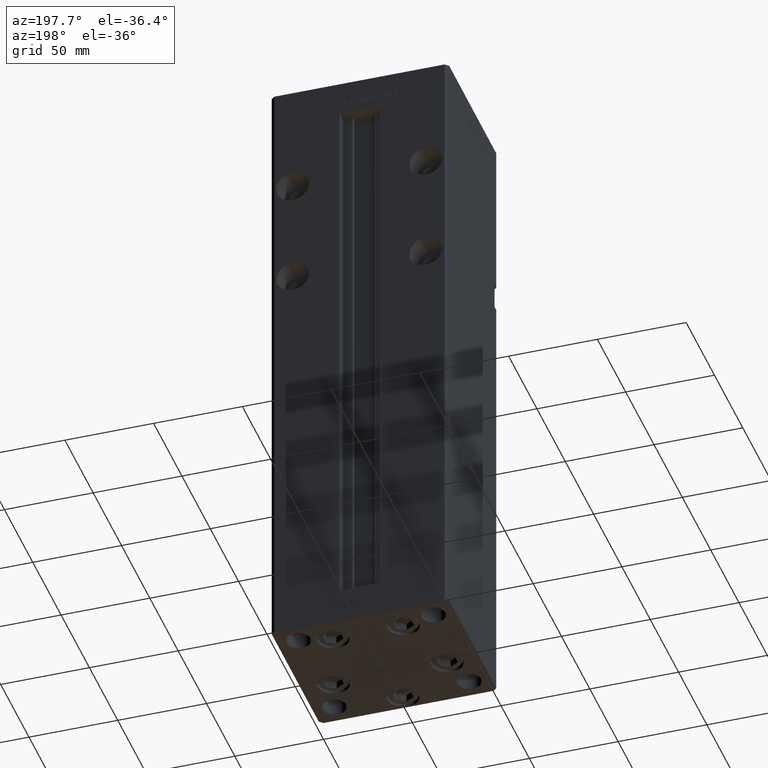
[diagram: clean part render]
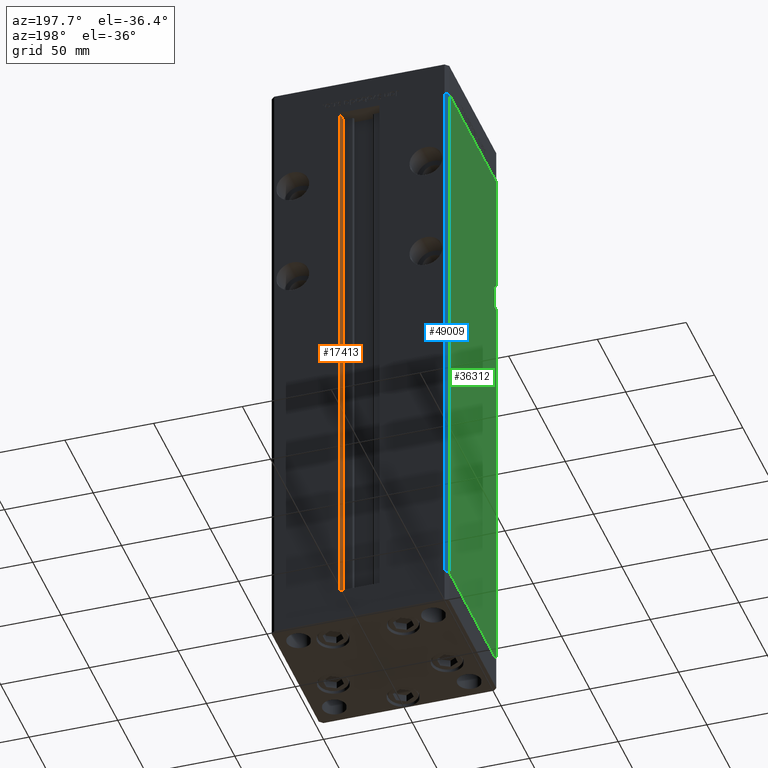
[diagram: same view with three faces highlighted in distinct colors, each labeled with its STEP entity id]
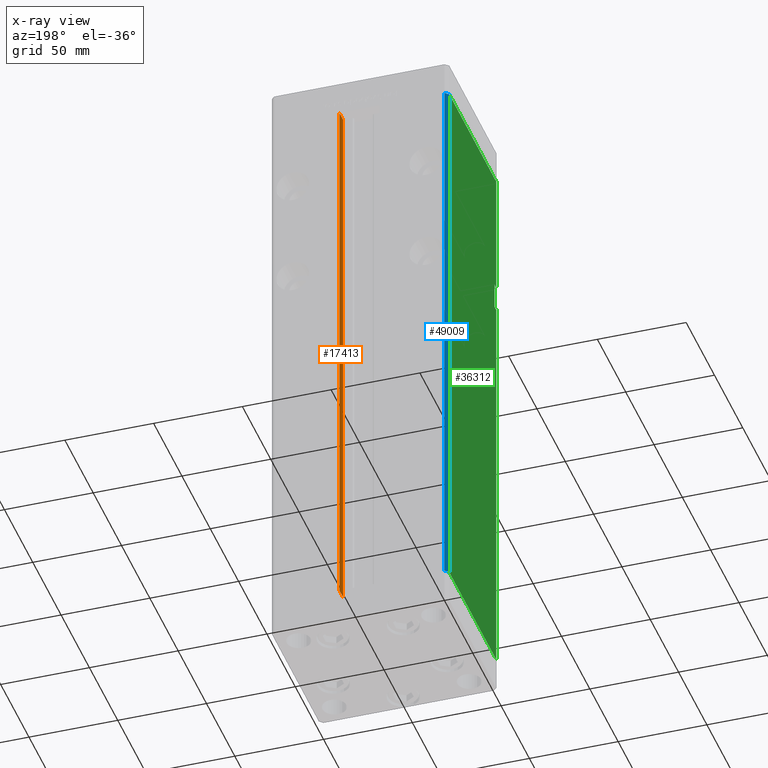
[diagram: x-ray of the same camera — body ghosted, the three highlighted faces saturated]
A machine part, auxiliary view with three faces highlighted in distinct colors.
The next image is the same camera in x-ray (body ghosted, the three faces saturated) — at least one of them is partly hidden behind the body in this view.
Their STEP definitions:

[orange] entity #17413 — the highlighted planar face has unit normal (1, 0, 0).
#274 = VECTOR ( 'NONE', #25777, 1000.000000000000000 ) ;
#2704 = EDGE_CURVE ( 'NONE', #45267, #31843, #22585, .T. ) ;
#2790 = ORIENTED_EDGE ( 'NONE', *, *, #43784, .F. ) ;
#2984 = CARTESIAN_POINT ( 'NONE',  ( 11.24999999999999645, 37.00000000000000000, 318.5000000000000000 ) ) ;
#3153 = EDGE_LOOP ( 'NONE', ( #2790, #44686, #5660, #45013 ) ) ;
#3252 = PLANE ( 'NONE',  #29648 ) ;
#5660 = ORIENTED_EDGE ( 'NONE', *, *, #7167, .T. ) ;
#6657 = CARTESIAN_POINT ( 'NONE',  ( 11.24999999999999645, 37.00000000000000000, 0.000000000000000000 ) ) ;
#7167 = EDGE_CURVE ( 'NONE', #35038, #31843, #38654, .T. ) ;
#10897 = EDGE_CURVE ( 'NONE', #35038, #51175, #35432, .T. ) ;
#11083 = LINE ( 'NONE', #51680, #22655 ) ;
#16158 = DIRECTION ( 'NONE',  ( 1.000000000000000000, -0.000000000000000000, 0.000000000000000000 ) ) ;
#17413 = ADVANCED_FACE ( 'NONE', ( #39553 ), #3252, .F. ) ;
#18794 = DIRECTION ( 'NONE',  ( -0.000000000000000000, -1.000000000000000000, 0.000000000000000000 ) ) ;
#22585 = LINE ( 'NONE', #38970, #39646 ) ;
#22655 = VECTOR ( 'NONE', #47114, 1000.000000000000000 ) ;
#25777 = DIRECTION ( 'NONE',  ( -0.000000000000000000, -0.000000000000000000, 1.000000000000000000 ) ) ;
#26634 = CARTESIAN_POINT ( 'NONE',  ( 11.24999999999999645, 37.00000000000000000, 0.000000000000000000 ) ) ;
#27470 = DIRECTION ( 'NONE',  ( 0.000000000000000000, 0.000000000000000000, -1.000000000000000000 ) ) ;
#29648 = AXIS2_PLACEMENT_3D ( 'NONE', #32563, #16158, #27470 ) ;
#31843 = VERTEX_POINT ( 'NONE', #2984 ) ;
#32563 = CARTESIAN_POINT ( 'NONE',  ( 11.24999999999999645, 37.00000000000000000, 0.000000000000000000 ) ) ;
#34096 = CARTESIAN_POINT ( 'NONE',  ( 11.24999999999999645, 37.00000000000000000, 0.000000000000000000 ) ) ;
#35038 = VERTEX_POINT ( 'NONE', #26634 ) ;
#35432 = LINE ( 'NONE', #6657, #45728 ) ;
#38654 = LINE ( 'NONE', #34096, #274 ) ;
#38970 = CARTESIAN_POINT ( 'NONE',  ( 11.24999999999999645, 0.000000000000000000, 318.5000000000000000 ) ) ;
#39201 = DIRECTION ( 'NONE',  ( 0.000000000000000000, 1.000000000000000000, 0.000000000000000000 ) ) ;
#39553 = FACE_OUTER_BOUND ( 'NONE', #3153, .T. ) ;
#39646 = VECTOR ( 'NONE', #18794, 1000.000000000000000 ) ;
#41485 = CARTESIAN_POINT ( 'NONE',  ( 11.24999999999999645, 43.50000000000000000, 0.000000000000000000 ) ) ;
#43436 = CARTESIAN_POINT ( 'NONE',  ( 11.24999999999998934, 43.50000000000000000, 318.5000000000000000 ) ) ;
#43784 = EDGE_CURVE ( 'NONE', #51175, #45267, #11083, .T. ) ;
#44686 = ORIENTED_EDGE ( 'NONE', *, *, #10897, .F. ) ;
#45013 = ORIENTED_EDGE ( 'NONE', *, *, #2704, .F. ) ;
#45267 = VERTEX_POINT ( 'NONE', #43436 ) ;
#45728 = VECTOR ( 'NONE', #39201, 1000.000000000000000 ) ;
#47114 = DIRECTION ( 'NONE',  ( -0.000000000000000000, -0.000000000000000000, 1.000000000000000000 ) ) ;
#51175 = VERTEX_POINT ( 'NONE', #41485 ) ;
#51680 = CARTESIAN_POINT ( 'NONE',  ( 11.24999999999999645, 43.50000000000000000, 0.000000000000000000 ) ) ;

[blue] entity #49009 — the highlighted planar face has unit normal (0.7071, -0.7071, 0).
#1175 = ORIENTED_EDGE ( 'NONE', *, *, #48254, .F. ) ;
#1574 = DIRECTION ( 'NONE',  ( -0.7071067811865487940, -0.7071067811865463515, 0.000000000000000000 ) ) ;
#3373 = CARTESIAN_POINT ( 'NONE',  ( -48.00000000000000711, 43.50000000000000000, 0.000000000000000000 ) ) ;
#3753 = VECTOR ( 'NONE', #1574, 1000.000000000000000 ) ;
#5062 = CARTESIAN_POINT ( 'NONE',  ( -48.00000000000000711, 43.50000000000000000, 318.5000000000000000 ) ) ;
#5734 = CARTESIAN_POINT ( 'NONE',  ( -50.00000000000001421, 41.49999999999999289, 0.000000000000000000 ) ) ;
#5883 = VERTEX_POINT ( 'NONE', #5734 ) ;
#8866 = VECTOR ( 'NONE', #46863, 1000.000000000000000 ) ;
#10056 = EDGE_CURVE ( 'NONE', #11620, #10709, #38400, .T. ) ;
#10709 = VERTEX_POINT ( 'NONE', #28779 ) ;
#11620 = VERTEX_POINT ( 'NONE', #36189 ) ;
#11961 = DIRECTION ( 'NONE',  ( -0.7071067811865487940, -0.7071067811865463515, 0.000000000000000000 ) ) ;
#14008 = VECTOR ( 'NONE', #14200, 1000.000000000000000 ) ;
#14112 = VECTOR ( 'NONE', #11961, 1000.000000000000000 ) ;
#14200 = DIRECTION ( 'NONE',  ( -0.000000000000000000, -0.000000000000000000, -1.000000000000000000 ) ) ;
#14460 = ORIENTED_EDGE ( 'NONE', *, *, #43548, .F. ) ;
#15687 = CARTESIAN_POINT ( 'NONE',  ( -48.00000000000000711, 43.50000000000000000, 318.5000000000000000 ) ) ;
#17861 = ORIENTED_EDGE ( 'NONE', *, *, #46278, .T. ) ;
#18117 = CARTESIAN_POINT ( 'NONE',  ( -50.00000000000001421, 41.49999999999999289, 318.5000000000000000 ) ) ;
#24042 = PLANE ( 'NONE',  #27832 ) ;
#27832 = AXIS2_PLACEMENT_3D ( 'NONE', #15687, #36383, #44432 ) ;
#28731 = VERTEX_POINT ( 'NONE', #40069 ) ;
#28779 = CARTESIAN_POINT ( 'NONE',  ( -48.00000000000000711, 43.50000000000000000, 0.000000000000000000 ) ) ;
#31152 = CARTESIAN_POINT ( 'NONE',  ( -48.00000000000000711, 43.50000000000000000, 318.5000000000000000 ) ) ;
#35314 = FACE_OUTER_BOUND ( 'NONE', #45598, .T. ) ;
#36189 = CARTESIAN_POINT ( 'NONE',  ( -48.00000000000000711, 43.50000000000000000, 318.5000000000000000 ) ) ;
#36383 = DIRECTION ( 'NONE',  ( 0.7071067811865463515, -0.7071067811865487940, 0.000000000000000000 ) ) ;
#38400 = LINE ( 'NONE', #5062, #14008 ) ;
#40069 = CARTESIAN_POINT ( 'NONE',  ( -50.00000000000001421, 41.49999999999999289, 318.5000000000000000 ) ) ;
#43548 = EDGE_CURVE ( 'NONE', #11620, #28731, #51546, .T. ) ;
#43968 = LINE ( 'NONE', #3373, #14112 ) ;
#44432 = DIRECTION ( 'NONE',  ( 0.7071067811865487940, 0.7071067811865463515, 0.000000000000000000 ) ) ;
#45598 = EDGE_LOOP ( 'NONE', ( #17861, #1175, #14460, #51946 ) ) ;
#46278 = EDGE_CURVE ( 'NONE', #10709, #5883, #43968, .T. ) ;
#46863 = DIRECTION ( 'NONE',  ( -0.000000000000000000, -0.000000000000000000, -1.000000000000000000 ) ) ;
#47113 = LINE ( 'NONE', #18117, #8866 ) ;
#48254 = EDGE_CURVE ( 'NONE', #28731, #5883, #47113, .T. ) ;
#49009 = ADVANCED_FACE ( 'NONE', ( #35314 ), #24042, .F. ) ;
#51546 = LINE ( 'NONE', #31152, #3753 ) ;
#51946 = ORIENTED_EDGE ( 'NONE', *, *, #10056, .T. ) ;

[green] entity #36312 — the highlighted planar face has unit normal (1, 0, 0).
#1402 = CARTESIAN_POINT ( 'NONE',  ( -49.99999999999998579, -38.50000000000000000, 248.0000000000000000 ) ) ;
#2820 = DIRECTION ( 'NONE',  ( 0.000000000000000000, 0.000000000000000000, -1.000000000000000000 ) ) ;
#3194 = DIRECTION ( 'NONE',  ( -0.000000000000000000, -0.000000000000000000, -1.000000000000000000 ) ) ;
#3657 = ORIENTED_EDGE ( 'NONE', *, *, #11352, .T. ) ;
#5734 = CARTESIAN_POINT ( 'NONE',  ( -50.00000000000001421, 41.49999999999999289, 0.000000000000000000 ) ) ;
#5740 = LINE ( 'NONE', #17844, #37706 ) ;
#5883 = VERTEX_POINT ( 'NONE', #5734 ) ;
#6180 = EDGE_CURVE ( 'NONE', #36671, #34931, #6962, .T. ) ;
#6962 = LINE ( 'NONE', #23395, #33740 ) ;
#8763 = CARTESIAN_POINT ( 'NONE',  ( -49.99999999999998579, -41.49999999999999289, 0.000000000000000000 ) ) ;
#8866 = VECTOR ( 'NONE', #46863, 1000.000000000000000 ) ;
#9964 = EDGE_LOOP ( 'NONE', ( #25011, #26723, #41919, #29230, #46095, #16480, #17275, #3657 ) ) ;
#11352 = EDGE_CURVE ( 'NONE', #5883, #44456, #13967, .T. ) ;
#12440 = EDGE_CURVE ( 'NONE', #36241, #34931, #16694, .T. ) ;
#13967 = LINE ( 'NONE', #30393, #19192 ) ;
#14886 = VECTOR ( 'NONE', #22332, 1000.000000000000000 ) ;
#16163 = DIRECTION ( 'NONE',  ( 1.000000000000000000, 3.344045254895050480E-16, -0.000000000000000000 ) ) ;
#16480 = ORIENTED_EDGE ( 'NONE', *, *, #30727, .F. ) ;
#16639 = CARTESIAN_POINT ( 'NONE',  ( -49.99999999999998579, -41.49999999999999289, 232.9999999999999716 ) ) ;
#16694 = LINE ( 'NONE', #21529, #14886 ) ;
#17275 = ORIENTED_EDGE ( 'NONE', *, *, #48254, .T. ) ;
#17844 = CARTESIAN_POINT ( 'NONE',  ( -49.99999999999998579, -38.50000000000000000, 232.9999999999999716 ) ) ;
#17950 = DIRECTION ( 'NONE',  ( -0.000000000000000000, -0.000000000000000000, -1.000000000000000000 ) ) ;
#18117 = CARTESIAN_POINT ( 'NONE',  ( -50.00000000000001421, 41.49999999999999289, 318.5000000000000000 ) ) ;
#18270 = DIRECTION ( 'NONE',  ( 3.344045254895050973E-16, -1.000000000000000000, 0.000000000000000000 ) ) ;
#19192 = VECTOR ( 'NONE', #18270, 1000.000000000000000 ) ;
#20455 = EDGE_CURVE ( 'NONE', #36241, #31814, #32146, .T. ) ;
#20503 = DIRECTION ( 'NONE',  ( 3.344045254895050973E-16, -1.000000000000000000, 0.000000000000000000 ) ) ;
#20674 = CARTESIAN_POINT ( 'NONE',  ( -49.99999999999998579, -41.49999999999999289, 318.5000000000000000 ) ) ;
#21529 = CARTESIAN_POINT ( 'NONE',  ( -49.99999999999998579, -38.50000000000000000, 248.0000000000000000 ) ) ;
#22004 = CARTESIAN_POINT ( 'NONE',  ( -49.99999999999998579, -41.49999999999999289, 318.5000000000000000 ) ) ;
#22332 = DIRECTION ( 'NONE',  ( -0.000000000000000000, -1.000000000000000000, -0.000000000000000000 ) ) ;
#23395 = CARTESIAN_POINT ( 'NONE',  ( -49.99999999999998579, -41.49999999999999289, 318.5000000000000000 ) ) ;
#25011 = ORIENTED_EDGE ( 'NONE', *, *, #34608, .F. ) ;
#26723 = ORIENTED_EDGE ( 'NONE', *, *, #28305, .F. ) ;
#28305 = EDGE_CURVE ( 'NONE', #31814, #35188, #5740, .T. ) ;
#28731 = VERTEX_POINT ( 'NONE', #40069 ) ;
#28846 = LINE ( 'NONE', #33389, #42093 ) ;
#29230 = ORIENTED_EDGE ( 'NONE', *, *, #12440, .T. ) ;
#30393 = CARTESIAN_POINT ( 'NONE',  ( -50.00000000000001421, 41.49999999999999289, 0.000000000000000000 ) ) ;
#30727 = EDGE_CURVE ( 'NONE', #28731, #36671, #28846, .T. ) ;
#31016 = DIRECTION ( 'NONE',  ( -0.000000000000000000, -1.000000000000000000, -0.000000000000000000 ) ) ;
#31814 = VERTEX_POINT ( 'NONE', #32555 ) ;
#32146 = LINE ( 'NONE', #47697, #39226 ) ;
#32555 = CARTESIAN_POINT ( 'NONE',  ( -49.99999999999998579, -38.50000000000000000, 232.9999999999999716 ) ) ;
#32569 = PLANE ( 'NONE',  #49810 ) ;
#33389 = CARTESIAN_POINT ( 'NONE',  ( -50.00000000000001421, 41.49999999999999289, 318.5000000000000000 ) ) ;
#33740 = VECTOR ( 'NONE', #3194, 1000.000000000000000 ) ;
#33900 = CARTESIAN_POINT ( 'NONE',  ( -49.99999999999998579, -41.49999999999999289, 248.0000000000000000 ) ) ;
#34608 = EDGE_CURVE ( 'NONE', #35188, #44456, #34624, .T. ) ;
#34624 = LINE ( 'NONE', #22004, #51503 ) ;
#34931 = VERTEX_POINT ( 'NONE', #33900 ) ;
#35188 = VERTEX_POINT ( 'NONE', #16639 ) ;
#36241 = VERTEX_POINT ( 'NONE', #1402 ) ;
#36312 = ADVANCED_FACE ( 'NONE', ( #36597 ), #32569, .F. ) ;
#36597 = FACE_OUTER_BOUND ( 'NONE', #9964, .T. ) ;
#36671 = VERTEX_POINT ( 'NONE', #20674 ) ;
#37706 = VECTOR ( 'NONE', #31016, 1000.000000000000000 ) ;
#39226 = VECTOR ( 'NONE', #2820, 1000.000000000000000 ) ;
#40069 = CARTESIAN_POINT ( 'NONE',  ( -50.00000000000001421, 41.49999999999999289, 318.5000000000000000 ) ) ;
#41919 = ORIENTED_EDGE ( 'NONE', *, *, #20455, .F. ) ;
#42093 = VECTOR ( 'NONE', #20503, 1000.000000000000000 ) ;
#44126 = CARTESIAN_POINT ( 'NONE',  ( -50.00000000000001421, 41.49999999999999289, 318.5000000000000000 ) ) ;
#44456 = VERTEX_POINT ( 'NONE', #8763 ) ;
#46095 = ORIENTED_EDGE ( 'NONE', *, *, #6180, .F. ) ;
#46863 = DIRECTION ( 'NONE',  ( -0.000000000000000000, -0.000000000000000000, -1.000000000000000000 ) ) ;
#47113 = LINE ( 'NONE', #18117, #8866 ) ;
#47697 = CARTESIAN_POINT ( 'NONE',  ( -49.99999999999998579, -38.50000000000000000, 248.0000000000000000 ) ) ;
#48254 = EDGE_CURVE ( 'NONE', #28731, #5883, #47113, .T. ) ;
#49810 = AXIS2_PLACEMENT_3D ( 'NONE', #44126, #16163, #52963 ) ;
#51503 = VECTOR ( 'NONE', #17950, 1000.000000000000000 ) ;
#52963 = DIRECTION ( 'NONE',  ( -3.344045254895050480E-16, 1.000000000000000000, 0.000000000000000000 ) ) ;